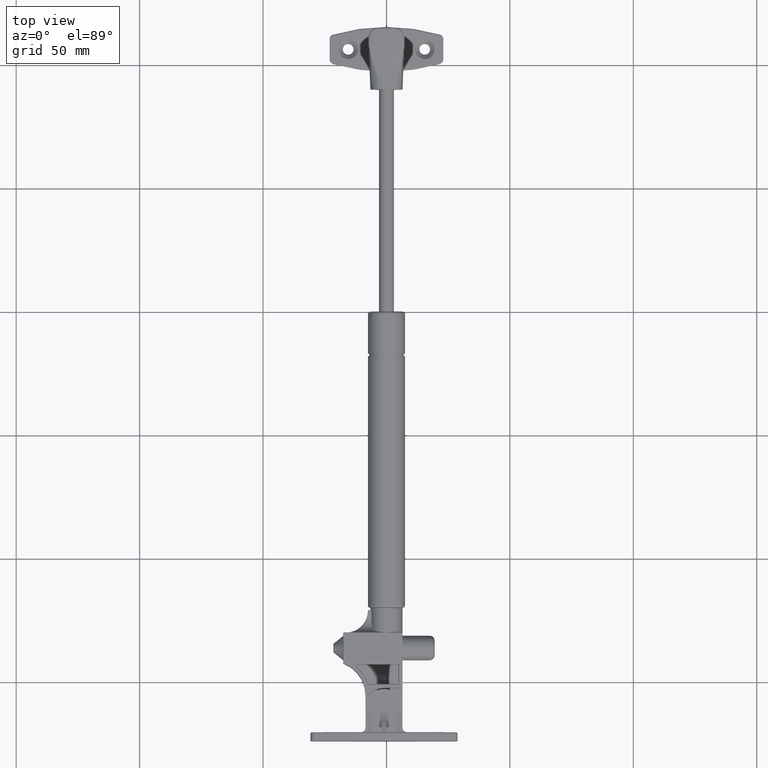
[diagram: clean part render]
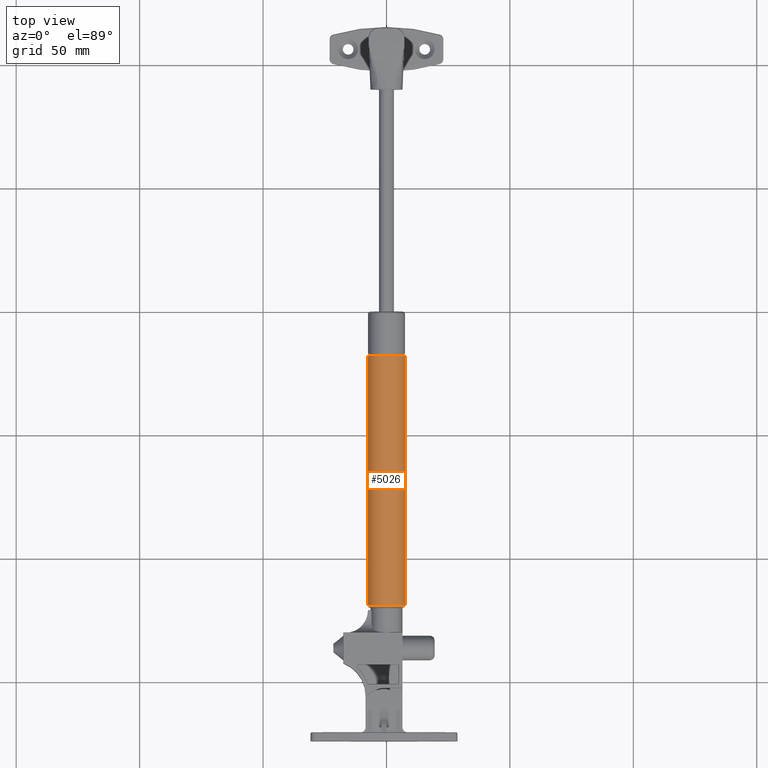
[diagram: same view with one face highlighted and labeled with its STEP entity id]
A machine part, top view. The second image highlights one B-rep face of the part: STEP entity #5026.
In plain terms, the highlighted cylindrical surface (bore or boss wall) has radius 7.5 mm, axis along (-0, -1, 0).
Its self-contained STEP definition (entity closure, byte-faithful):
#917=CYLINDRICAL_SURFACE('',#5491,7.5);
#1123=FACE_BOUND('',#1642,.T.);
#1255=FACE_OUTER_BOUND('',#1641,.T.);
#1641=EDGE_LOOP('',(#3863));
#1642=EDGE_LOOP('',(#3864));
#2023=CIRCLE('',#5489,7.5);
#2025=CIRCLE('',#5492,7.5);
#2385=VERTEX_POINT('',#7841);
#2387=VERTEX_POINT('',#7846);
#2911=EDGE_CURVE('',#2385,#2385,#2023,.T.);
#2913=EDGE_CURVE('',#2387,#2387,#2025,.T.);
#3863=ORIENTED_EDGE('',*,*,#2913,.T.);
#3864=ORIENTED_EDGE('',*,*,#2911,.F.);
#5026=ADVANCED_FACE('',(#1255,#1123),#917,.T.);
#5489=AXIS2_PLACEMENT_3D('',#7842,#6412,#6413);
#5491=AXIS2_PLACEMENT_3D('',#7845,#6416,#6417);
#5492=AXIS2_PLACEMENT_3D('',#7847,#6418,#6419);
#6412=DIRECTION('center_axis',(1.85227828371037E-16,-1.,0.));
#6413=DIRECTION('ref_axis',(-1.,-1.85037170770859E-16,1.22464679914735E-16));
#6416=DIRECTION('center_axis',(1.85227828371037E-16,-1.,0.));
#6417=DIRECTION('ref_axis',(1.,1.85227828371037E-16,0.));
#6418=DIRECTION('center_axis',(0.,-1.,0.));
#6419=DIRECTION('ref_axis',(1.,1.85227828371037E-16,0.));
#7841=CARTESIAN_POINT('',(7.50000000000002,-119.,0.));
#7842=CARTESIAN_POINT('Origin',(2.20421115761534E-14,-119.,0.));
#7845=CARTESIAN_POINT('Origin',(1.11136697022622E-14,-60.,0.));
#7846=CARTESIAN_POINT('',(7.5,-18.,0.));
#7847=CARTESIAN_POINT('Origin',(3.33410091067867E-15,-18.,0.));